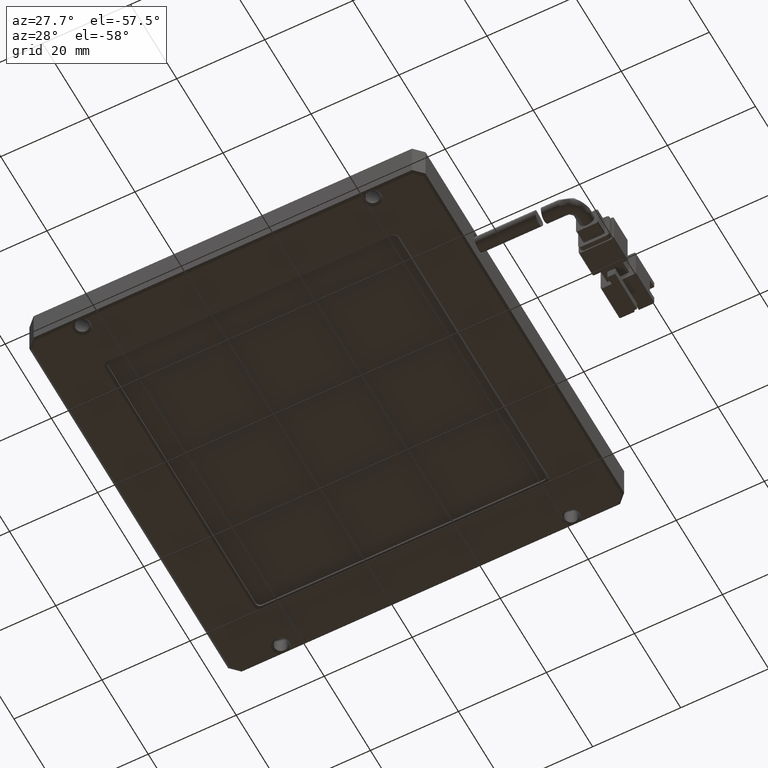
[diagram: clean part render]
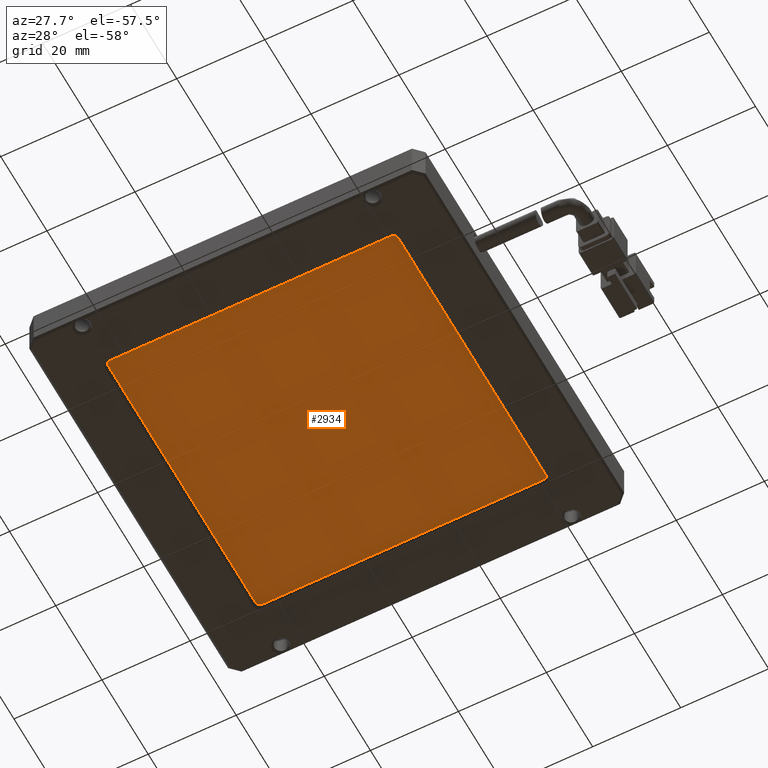
[diagram: same view with one face highlighted and labeled with its STEP entity id]
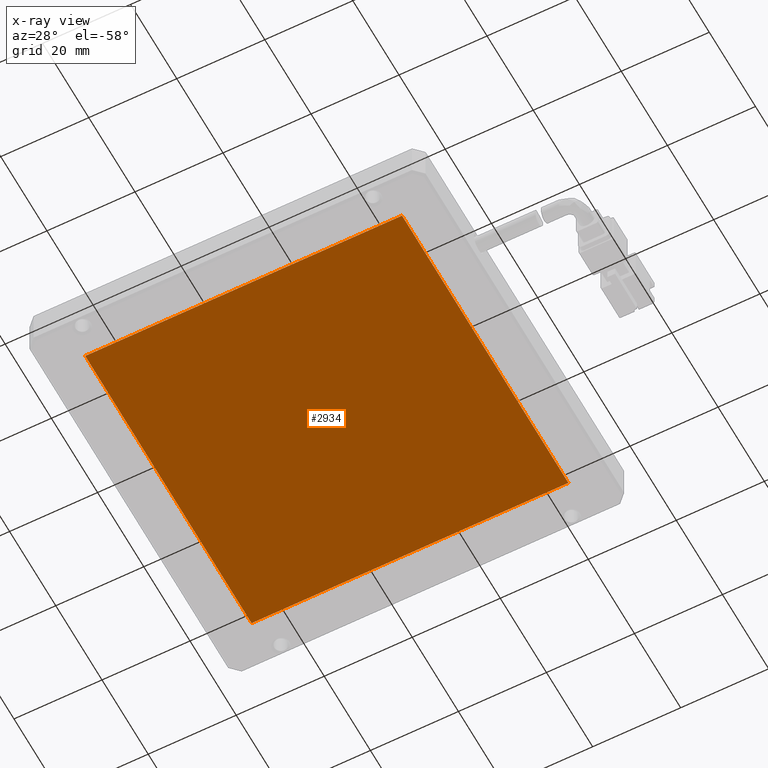
[diagram: x-ray of the same camera — body ghosted, the highlighted face saturated]
A machine part, auxiliary view. The second image highlights one B-rep face of the part: STEP entity #2934.
The next image is the same camera in x-ray: the body ghosted, the highlighted face saturated — about 0% of this face is hidden behind the body in this view.
In plain terms, the highlighted planar face has unit normal (0, 0, -1).
Its self-contained STEP definition (entity closure, byte-faithful):
#14 = ORIENTED_EDGE ( 'NONE', *, *, #17398, .T. ) ;
#291 = ORIENTED_EDGE ( 'NONE', *, *, #6738, .T. ) ;
#843 = PLANE ( 'NONE',  #8761 ) ;
#885 = ORIENTED_EDGE ( 'NONE', *, *, #15515, .T. ) ;
#1300 = ORIENTED_EDGE ( 'NONE', *, *, #11794, .T. ) ;
#1764 = VECTOR ( 'NONE', #5380, 1000.000000000000000 ) ;
#2902 = CARTESIAN_POINT ( 'NONE',  ( 3.920740740740766400, 63.93999999999999800, -2.000000000000000000 ) ) ;
#2934 = ADVANCED_FACE ( 'NONE', ( #15660 ), #843, .T. ) ;
#4005 = CARTESIAN_POINT ( 'NONE',  ( -68.07925925925924600, 63.93999999999998400, -2.000000000000000000 ) ) ;
#4195 = VERTEX_POINT ( 'NONE', #8047 ) ;
#4777 = VECTOR ( 'NONE', #9874, 1000.000000000000000 ) ;
#4886 = DIRECTION ( 'NONE',  ( 9.637352644315595200E-017, -1.000000000000000000, 0.0000000000000000000 ) ) ;
#5380 = DIRECTION ( 'NONE',  ( -9.637352644315597700E-017, 1.000000000000000000, 0.0000000000000000000 ) ) ;
#5432 = LINE ( 'NONE', #4005, #1764 ) ;
#6738 = EDGE_CURVE ( 'NONE', #4195, #8916, #12428, .T. ) ;
#7312 = CARTESIAN_POINT ( 'NONE',  ( -68.07925925925923100, -8.060000000000007600, -2.000000000000000000 ) ) ;
#7617 = VERTEX_POINT ( 'NONE', #12976 ) ;
#8047 = CARTESIAN_POINT ( 'NONE',  ( 3.920740740740766400, -8.060000000000007600, -2.000000000000000000 ) ) ;
#8080 = CARTESIAN_POINT ( 'NONE',  ( 3.920740740740773100, -8.060000000000007600, -2.000000000000000000 ) ) ;
#8622 = EDGE_LOOP ( 'NONE', ( #14, #291, #885, #1300 ) ) ;
#8761 = AXIS2_PLACEMENT_3D ( 'NONE', #17037, #16975, #14232 ) ;
#8916 = VERTEX_POINT ( 'NONE', #7312 ) ;
#9161 = VECTOR ( 'NONE', #13751, 1000.000000000000000 ) ;
#9874 = DIRECTION ( 'NONE',  ( 1.000000000000000000, 1.927470528863119000E-016, 0.0000000000000000000 ) ) ;
#11794 = EDGE_CURVE ( 'NONE', #7617, #13169, #15904, .T. ) ;
#11845 = CARTESIAN_POINT ( 'NONE',  ( 3.920740740740766400, 63.93999999999999800, -2.000000000000000000 ) ) ;
#11866 = LINE ( 'NONE', #11845, #15094 ) ;
#12428 = LINE ( 'NONE', #8080, #9161 ) ;
#12544 = CARTESIAN_POINT ( 'NONE',  ( 3.920740740740766400, 63.93999999999999800, -2.000000000000000000 ) ) ;
#12976 = CARTESIAN_POINT ( 'NONE',  ( -68.07925925925924600, 63.93999999999998400, -2.000000000000000000 ) ) ;
#13169 = VERTEX_POINT ( 'NONE', #12544 ) ;
#13751 = DIRECTION ( 'NONE',  ( -1.000000000000000000, -9.637352644315595200E-017, 0.0000000000000000000 ) ) ;
#14232 = DIRECTION ( 'NONE',  ( -1.000000000000000000, 0.0000000000000000000, -0.0000000000000000000 ) ) ;
#15094 = VECTOR ( 'NONE', #4886, 1000.000000000000000 ) ;
#15515 = EDGE_CURVE ( 'NONE', #8916, #7617, #5432, .T. ) ;
#15660 = FACE_OUTER_BOUND ( 'NONE', #8622, .T. ) ;
#15904 = LINE ( 'NONE', #2902, #4777 ) ;
#16975 = DIRECTION ( 'NONE',  ( 0.0000000000000000000, 0.0000000000000000000, -1.000000000000000000 ) ) ;
#17037 = CARTESIAN_POINT ( 'NONE',  ( -68.07925925925923100, -8.060000000000014700, -2.000000000000000000 ) ) ;
#17398 = EDGE_CURVE ( 'NONE', #13169, #4195, #11866, .T. ) ;